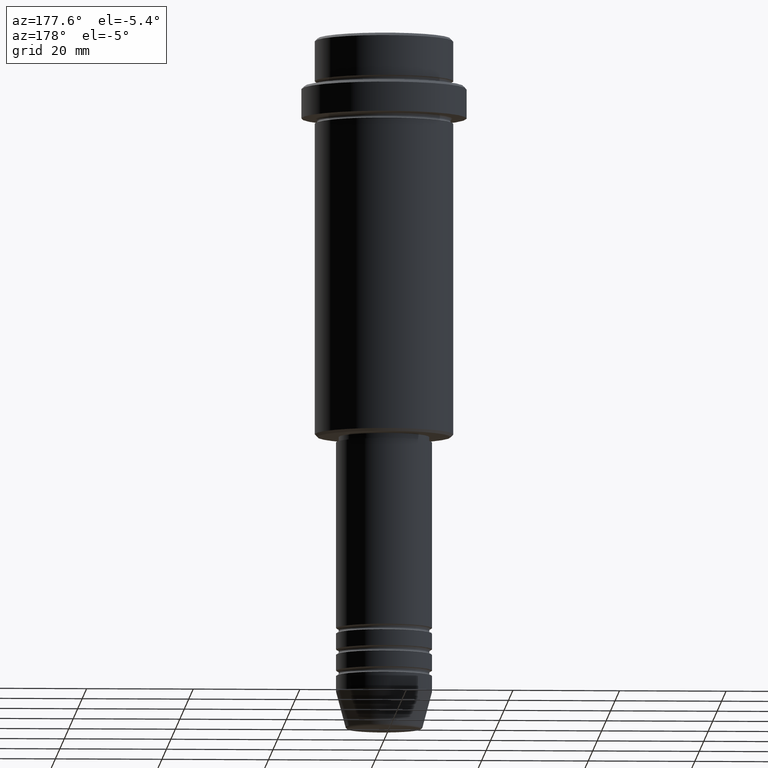
[diagram: clean part render]
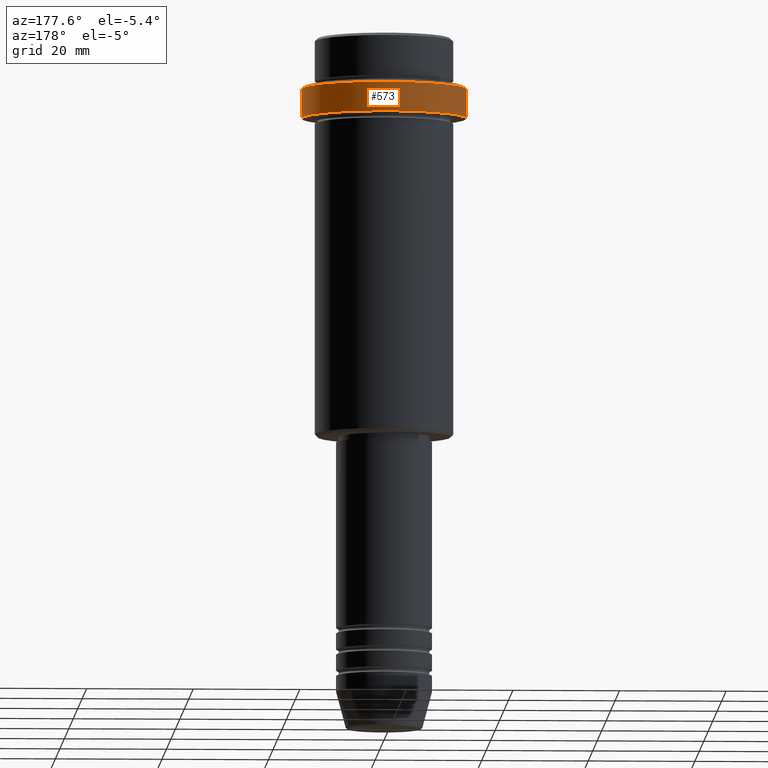
[diagram: same view with one face highlighted and labeled with its STEP entity id]
A machine part, auxiliary view. The second image highlights one B-rep face of the part: STEP entity #573.
In plain terms, the highlighted cylindrical surface (partial cylindrical patch) has radius 15.5 mm, axis along (-0, -0, 1).
Its self-contained STEP definition (entity closure, byte-faithful):
#13 = DIRECTION ( 'NONE',  ( 1.000000000000000000, 0.000000000000000000, 0.000000000000000000 ) ) ;
#45 = CARTESIAN_POINT ( 'NONE',  ( -15.50000000000000000, 1.898202538678397557E-15, -15.00000000000000000 ) ) ;
#54 = LINE ( 'NONE', #585, #1141 ) ;
#114 = CYLINDRICAL_SURFACE ( 'NONE', #489, 15.50000000000000000 ) ;
#169 = CIRCLE ( 'NONE', #713, 15.50000000000000000 ) ;
#190 = CARTESIAN_POINT ( 'NONE',  ( 0.000000000000000000, 0.000000000000000000, -9.500000000000026645 ) ) ;
#210 = EDGE_CURVE ( 'NONE', #442, #282, #1304, .T. ) ;
#242 = CARTESIAN_POINT ( 'NONE',  ( 0.000000000000000000, 0.000000000000000000, -15.00000000000000000 ) ) ;
#262 = DIRECTION ( 'NONE',  ( 1.000000000000000000, 0.000000000000000000, 0.000000000000000000 ) ) ;
#282 = VERTEX_POINT ( 'NONE', #1254 ) ;
#316 = FACE_OUTER_BOUND ( 'NONE', #386, .T. ) ;
#320 = CARTESIAN_POINT ( 'NONE',  ( 15.50000000000000000, 0.000000000000000000, 0.000000000000000000 ) ) ;
#336 = ORIENTED_EDGE ( 'NONE', *, *, #1139, .T. ) ;
#386 = EDGE_LOOP ( 'NONE', ( #415, #336, #715, #1199 ) ) ;
#415 = ORIENTED_EDGE ( 'NONE', *, *, #805, .T. ) ;
#442 = VERTEX_POINT ( 'NONE', #740 ) ;
#454 = DIRECTION ( 'NONE',  ( -0.000000000000000000, -0.000000000000000000, 1.000000000000000000 ) ) ;
#489 = AXIS2_PLACEMENT_3D ( 'NONE', #1211, #1100, #13 ) ;
#573 = ADVANCED_FACE ( 'NONE', ( #316 ), #114, .T. ) ;
#585 = CARTESIAN_POINT ( 'NONE',  ( -15.50000000000000000, 1.898202538678397557E-15, 0.000000000000000000 ) ) ;
#591 = DIRECTION ( 'NONE',  ( 0.000000000000000000, 0.000000000000000000, -1.000000000000000000 ) ) ;
#713 = AXIS2_PLACEMENT_3D ( 'NONE', #190, #591, #961 ) ;
#715 = ORIENTED_EDGE ( 'NONE', *, *, #893, .T. ) ;
#740 = CARTESIAN_POINT ( 'NONE',  ( 15.50000000000000000, 0.000000000000000000, -15.00000000000000000 ) ) ;
#805 = EDGE_CURVE ( 'NONE', #442, #1203, #1032, .T. ) ;
#807 = DIRECTION ( 'NONE',  ( -0.000000000000000000, -0.000000000000000000, 1.000000000000000000 ) ) ;
#882 = DIRECTION ( 'NONE',  ( -0.000000000000000000, -0.000000000000000000, 1.000000000000000000 ) ) ;
#893 = EDGE_CURVE ( 'NONE', #960, #282, #169, .T. ) ;
#957 = AXIS2_PLACEMENT_3D ( 'NONE', #242, #807, #262 ) ;
#960 = VERTEX_POINT ( 'NONE', #1155 ) ;
#961 = DIRECTION ( 'NONE',  ( 1.000000000000000000, 0.000000000000000000, 0.000000000000000000 ) ) ;
#1032 = CIRCLE ( 'NONE', #957, 15.50000000000000000 ) ;
#1100 = DIRECTION ( 'NONE',  ( -0.000000000000000000, -0.000000000000000000, 1.000000000000000000 ) ) ;
#1139 = EDGE_CURVE ( 'NONE', #1203, #960, #54, .T. ) ;
#1141 = VECTOR ( 'NONE', #454, 1000.000000000000000 ) ;
#1155 = CARTESIAN_POINT ( 'NONE',  ( -15.50000000000000000, 1.898202538678397557E-15, -9.500000000000026645 ) ) ;
#1199 = ORIENTED_EDGE ( 'NONE', *, *, #210, .F. ) ;
#1203 = VERTEX_POINT ( 'NONE', #45 ) ;
#1211 = CARTESIAN_POINT ( 'NONE',  ( 0.000000000000000000, 0.000000000000000000, 0.000000000000000000 ) ) ;
#1254 = CARTESIAN_POINT ( 'NONE',  ( 15.50000000000000000, 0.000000000000000000, -9.500000000000026645 ) ) ;
#1304 = LINE ( 'NONE', #320, #1415 ) ;
#1415 = VECTOR ( 'NONE', #882, 1000.000000000000000 ) ;